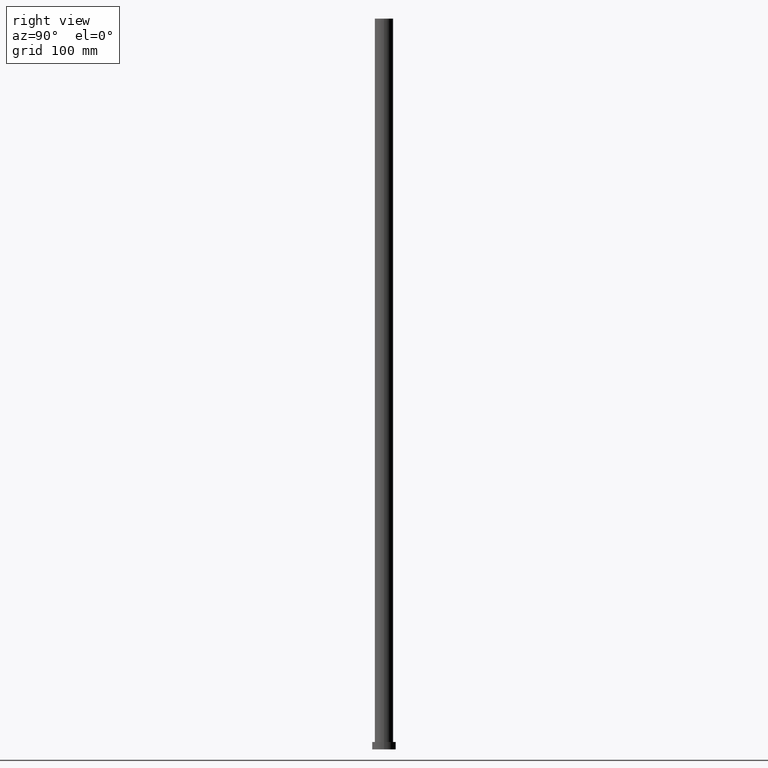
[diagram: clean part render]
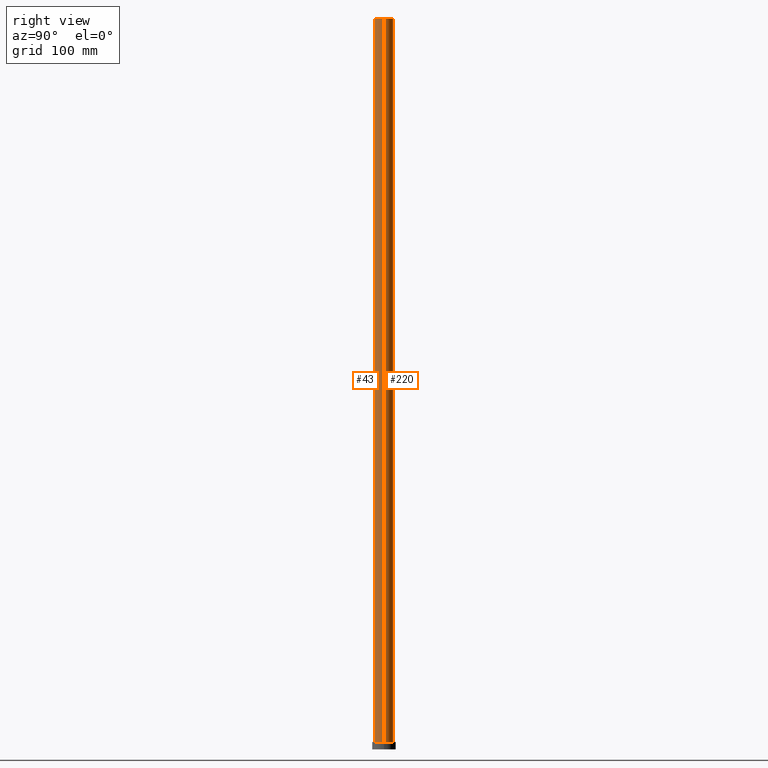
[diagram: same view with one multi-face feature highlighted, each face labeled with its STEP entity id]
A machine part, right view. The highlighted faces form ONE feature: a constant-radius fillet chain: 2 tangent blend faces with common blend radius 10 mm. The faces share edges in the B-rep.
Their STEP definitions:
[1] entity #220 (Cylinder):
#4 = DIRECTION ( 'NONE',  ( -0.000000000000000000, -0.000000000000000000, -1.000000000000000000 ) ) ;
#8 = VECTOR ( 'NONE', #106, 1000.000000000000000 ) ;
#20 = CIRCLE ( 'NONE', #176, 10.00000000000000000 ) ;
#21 = DIRECTION ( 'NONE',  ( 1.000000000000000000, 0.000000000000000000, 0.000000000000000000 ) ) ;
#31 = CARTESIAN_POINT ( 'NONE',  ( -10.00000000000000000, 0.000000000000000000, 800.0000000000000000 ) ) ;
#35 = DIRECTION ( 'NONE',  ( 0.000000000000000000, 0.000000000000000000, 1.000000000000000000 ) ) ;
#42 = ORIENTED_EDGE ( 'NONE', *, *, #249, .T. ) ;
#44 = AXIS2_PLACEMENT_3D ( 'NONE', #200, #95, #69 ) ;
#50 = CARTESIAN_POINT ( 'NONE',  ( 0.000000000000000000, 0.000000000000000000, 8.000000000000000000 ) ) ;
#51 = FACE_OUTER_BOUND ( 'NONE', #221, .T. ) ;
#69 = DIRECTION ( 'NONE',  ( 1.000000000000000000, 0.000000000000000000, 0.000000000000000000 ) ) ;
#95 = DIRECTION ( 'NONE',  ( 0.000000000000000000, 0.000000000000000000, 1.000000000000000000 ) ) ;
#106 = DIRECTION ( 'NONE',  ( -0.000000000000000000, -0.000000000000000000, -1.000000000000000000 ) ) ;
#113 = CARTESIAN_POINT ( 'NONE',  ( 0.000000000000000000, 0.000000000000000000, 800.0000000000000000 ) ) ;
#122 = VERTEX_POINT ( 'NONE', #31 ) ;
#125 = VERTEX_POINT ( 'NONE', #128 ) ;
#128 = CARTESIAN_POINT ( 'NONE',  ( 10.00000000000000000, 1.224646799147353256E-15, 8.000000000000000000 ) ) ;
#139 = VECTOR ( 'NONE', #4, 1000.000000000000000 ) ;
#141 = CYLINDRICAL_SURFACE ( 'NONE', #236, 10.00000000000000000 ) ;
#156 = EDGE_CURVE ( 'NONE', #122, #184, #248, .T. ) ;
#159 = CARTESIAN_POINT ( 'NONE',  ( 10.00000000000000000, 1.224646799147353256E-15, 800.0000000000000000 ) ) ;
#173 = ORIENTED_EDGE ( 'NONE', *, *, #156, .F. ) ;
#176 = AXIS2_PLACEMENT_3D ( 'NONE', #50, #35, #21 ) ;
#181 = DIRECTION ( 'NONE',  ( -0.000000000000000000, -0.000000000000000000, -1.000000000000000000 ) ) ;
#184 = VERTEX_POINT ( 'NONE', #238 ) ;
#185 = ORIENTED_EDGE ( 'NONE', *, *, #234, .T. ) ;
#200 = CARTESIAN_POINT ( 'NONE',  ( 0.000000000000000000, 0.000000000000000000, 800.0000000000000000 ) ) ;
#211 = DIRECTION ( 'NONE',  ( -1.000000000000000000, 0.000000000000000000, 0.000000000000000000 ) ) ;
#212 = CARTESIAN_POINT ( 'NONE',  ( 10.00000000000000000, 1.224646799147353256E-15, 800.0000000000000000 ) ) ;
#214 = LINE ( 'NONE', #212, #139 ) ;
#220 = ADVANCED_FACE ( 'NONE', ( #51 ), #141, .T. ) ;
#221 = EDGE_LOOP ( 'NONE', ( #251, #185, #42, #173 ) ) ;
#225 = CARTESIAN_POINT ( 'NONE',  ( -10.00000000000000000, 0.000000000000000000, 800.0000000000000000 ) ) ;
#234 = EDGE_CURVE ( 'NONE', #241, #125, #214, .T. ) ;
#236 = AXIS2_PLACEMENT_3D ( 'NONE', #113, #181, #211 ) ;
#237 = CIRCLE ( 'NONE', #44, 10.00000000000000000 ) ;
#238 = CARTESIAN_POINT ( 'NONE',  ( -10.00000000000000000, 0.000000000000000000, 8.000000000000000000 ) ) ;
#241 = VERTEX_POINT ( 'NONE', #159 ) ;
#245 = EDGE_CURVE ( 'NONE', #241, #122, #237, .T. ) ;
#248 = LINE ( 'NONE', #225, #8 ) ;
#249 = EDGE_CURVE ( 'NONE', #125, #184, #20, .T. ) ;
#251 = ORIENTED_EDGE ( 'NONE', *, *, #245, .F. ) ;
[2] entity #43 (Cylinder):
#4 = DIRECTION ( 'NONE',  ( -0.000000000000000000, -0.000000000000000000, -1.000000000000000000 ) ) ;
#8 = VECTOR ( 'NONE', #106, 1000.000000000000000 ) ;
#14 = DIRECTION ( 'NONE',  ( 0.000000000000000000, 0.000000000000000000, 1.000000000000000000 ) ) ;
#31 = CARTESIAN_POINT ( 'NONE',  ( -10.00000000000000000, 0.000000000000000000, 800.0000000000000000 ) ) ;
#32 = AXIS2_PLACEMENT_3D ( 'NONE', #192, #205, #254 ) ;
#43 = ADVANCED_FACE ( 'NONE', ( #104 ), #92, .T. ) ;
#65 = CIRCLE ( 'NONE', #103, 10.00000000000000000 ) ;
#71 = EDGE_CURVE ( 'NONE', #184, #125, #79, .T. ) ;
#76 = ORIENTED_EDGE ( 'NONE', *, *, #71, .T. ) ;
#78 = EDGE_LOOP ( 'NONE', ( #123, #190, #166, #76 ) ) ;
#79 = CIRCLE ( 'NONE', #138, 10.00000000000000000 ) ;
#92 = CYLINDRICAL_SURFACE ( 'NONE', #32, 10.00000000000000000 ) ;
#103 = AXIS2_PLACEMENT_3D ( 'NONE', #189, #14, #172 ) ;
#104 = FACE_OUTER_BOUND ( 'NONE', #78, .T. ) ;
#106 = DIRECTION ( 'NONE',  ( -0.000000000000000000, -0.000000000000000000, -1.000000000000000000 ) ) ;
#107 = DIRECTION ( 'NONE',  ( 0.000000000000000000, 0.000000000000000000, 1.000000000000000000 ) ) ;
#122 = VERTEX_POINT ( 'NONE', #31 ) ;
#123 = ORIENTED_EDGE ( 'NONE', *, *, #234, .F. ) ;
#125 = VERTEX_POINT ( 'NONE', #128 ) ;
#128 = CARTESIAN_POINT ( 'NONE',  ( 10.00000000000000000, 1.224646799147353256E-15, 8.000000000000000000 ) ) ;
#138 = AXIS2_PLACEMENT_3D ( 'NONE', #153, #107, #155 ) ;
#139 = VECTOR ( 'NONE', #4, 1000.000000000000000 ) ;
#153 = CARTESIAN_POINT ( 'NONE',  ( 0.000000000000000000, 0.000000000000000000, 8.000000000000000000 ) ) ;
#155 = DIRECTION ( 'NONE',  ( 1.000000000000000000, 0.000000000000000000, 0.000000000000000000 ) ) ;
#156 = EDGE_CURVE ( 'NONE', #122, #184, #248, .T. ) ;
#158 = EDGE_CURVE ( 'NONE', #122, #241, #65, .T. ) ;
#159 = CARTESIAN_POINT ( 'NONE',  ( 10.00000000000000000, 1.224646799147353256E-15, 800.0000000000000000 ) ) ;
#166 = ORIENTED_EDGE ( 'NONE', *, *, #156, .T. ) ;
#172 = DIRECTION ( 'NONE',  ( 1.000000000000000000, 0.000000000000000000, 0.000000000000000000 ) ) ;
#184 = VERTEX_POINT ( 'NONE', #238 ) ;
#189 = CARTESIAN_POINT ( 'NONE',  ( 0.000000000000000000, 0.000000000000000000, 800.0000000000000000 ) ) ;
#190 = ORIENTED_EDGE ( 'NONE', *, *, #158, .F. ) ;
#192 = CARTESIAN_POINT ( 'NONE',  ( 0.000000000000000000, 0.000000000000000000, 800.0000000000000000 ) ) ;
#205 = DIRECTION ( 'NONE',  ( -0.000000000000000000, -0.000000000000000000, -1.000000000000000000 ) ) ;
#212 = CARTESIAN_POINT ( 'NONE',  ( 10.00000000000000000, 1.224646799147353256E-15, 800.0000000000000000 ) ) ;
#214 = LINE ( 'NONE', #212, #139 ) ;
#225 = CARTESIAN_POINT ( 'NONE',  ( -10.00000000000000000, 0.000000000000000000, 800.0000000000000000 ) ) ;
#234 = EDGE_CURVE ( 'NONE', #241, #125, #214, .T. ) ;
#238 = CARTESIAN_POINT ( 'NONE',  ( -10.00000000000000000, 0.000000000000000000, 8.000000000000000000 ) ) ;
#241 = VERTEX_POINT ( 'NONE', #159 ) ;
#248 = LINE ( 'NONE', #225, #8 ) ;
#254 = DIRECTION ( 'NONE',  ( -1.000000000000000000, 0.000000000000000000, 0.000000000000000000 ) ) ;